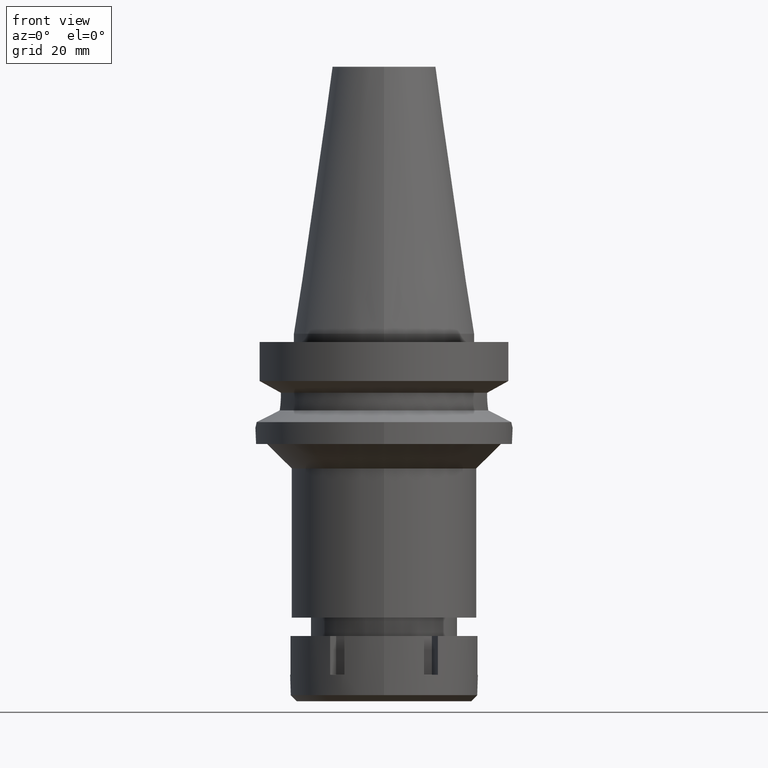
[diagram: clean part render]
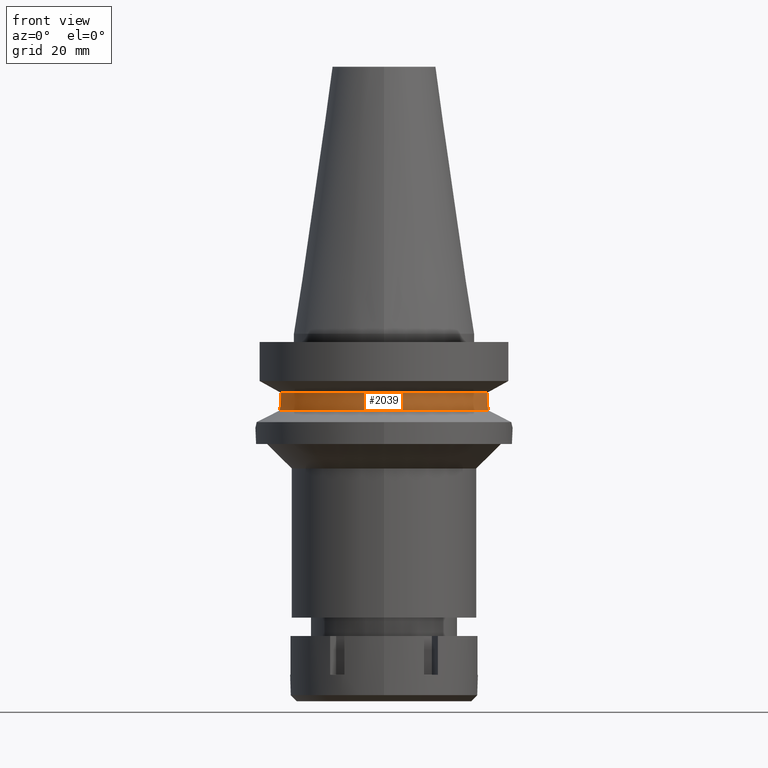
[diagram: same view with one face highlighted and labeled with its STEP entity id]
A machine part, front view. The second image highlights one B-rep face of the part: STEP entity #2039.
In plain terms, the highlighted cylindrical surface (partial cylindrical patch) has radius 26.5 mm, axis along (0, 0, -1).
Its self-contained STEP definition (entity closure, byte-faithful):
#4 = CARTESIAN_POINT ( 'NONE',  ( -25.32419709970849553, -7.806318959900105270, -16.91578803901766292 ) ) ;
#18 = CARTESIAN_POINT ( 'NONE',  ( -25.53175183775000079, -7.097862220092999941, -18.74774300138999905 ) ) ;
#37 = CARTESIAN_POINT ( 'NONE',  ( -25.34388450889784750, -7.742333382928174856, -17.15666984720027344 ) ) ;
#69 = ORIENTED_EDGE ( 'NONE', *, *, #2033, .F. ) ;
#160 = LINE ( 'NONE', #2058, #1057 ) ;
#229 = CYLINDRICAL_SURFACE ( 'NONE', #2200, 26.50000000000000000 ) ;
#251 = CARTESIAN_POINT ( 'NONE',  ( -25.24772266957999989, -8.049999999999981171, -15.58999736273363546 ) ) ;
#274 = CARTESIAN_POINT ( 'NONE',  ( -25.39164951572487183, -7.584807667336966652, -17.65197957159458753 ) ) ;
#398 = CIRCLE ( 'NONE', #452, 26.50000000000000711 ) ;
#452 = AXIS2_PLACEMENT_3D ( 'NONE', #2230, #1123, #1888 ) ;
#462 = EDGE_CURVE ( 'NONE', #1646, #2108, #784, .T. ) ;
#506 = CARTESIAN_POINT ( 'NONE',  ( 25.36814761471071833, -7.663830712965396863, -17.48803584493440155 ) ) ;
#527 = DIRECTION ( 'NONE',  ( -2.939192534022975746E-06, 9.218380696526922230E-06, 0.9999999999531912209 ) ) ;
#572 = CARTESIAN_POINT ( 'NONE',  ( -25.35412323723021544, -7.708830947932238331, -17.27007949472962878 ) ) ;
#593 = ORIENTED_EDGE ( 'NONE', *, *, #2629, .F. ) ;
#717 = CARTESIAN_POINT ( 'NONE',  ( 25.53175183775000079, -7.097862220092999941, -18.74774300138999905 ) ) ;
#734 = ORIENTED_EDGE ( 'NONE', *, *, #1414, .F. ) ;
#752 = CARTESIAN_POINT ( 'NONE',  ( 25.24772266958000344, -8.050000000000000711, -14.94999999999999929 ) ) ;
#784 = CIRCLE ( 'NONE', #1231, 26.49999999999998224 ) ;
#870 = VERTEX_POINT ( 'NONE', #2867 ) ;
#1057 = VECTOR ( 'NONE', #3492, 1000.000000000000000 ) ;
#1068 = CARTESIAN_POINT ( 'NONE',  ( -25.24772266958000344, -8.050000000000000711, -14.94999999999999929 ) ) ;
#1102 = CARTESIAN_POINT ( 'NONE',  ( -25.32844777903620681, -7.792527725354012169, -16.96974754110893002 ) ) ;
#1123 = DIRECTION ( 'NONE',  ( 0.0000000000000000000, 0.0000000000000000000, -1.000000000000000000 ) ) ;
#1189 = EDGE_CURVE ( 'NONE', #1648, #870, #398, .T. ) ;
#1231 = AXIS2_PLACEMENT_3D ( 'NONE', #2509, #1915, #3074 ) ;
#1247 = CARTESIAN_POINT ( 'NONE',  ( 25.24772266958000699, -8.050000000000000711, -15.26991324108734283 ) ) ;
#1292 = CARTESIAN_POINT ( 'NONE',  ( 25.31950905643225980, -7.821515286679934675, -16.85442525727312812 ) ) ;
#1299 = DIRECTION ( 'NONE',  ( 0.0000000000000000000, 0.0000000000000000000, -1.000000000000000000 ) ) ;
#1309 = CARTESIAN_POINT ( 'NONE',  ( 25.27268336911707891, -7.971811480182260823, -16.08115959834935182 ) ) ;
#1347 = CARTESIAN_POINT ( 'NONE',  ( -25.37573308857942322, -7.637710303739487117, -17.49818662950802306 ) ) ;
#1389 = ORIENTED_EDGE ( 'NONE', *, *, #1189, .T. ) ;
#1414 = EDGE_CURVE ( 'NONE', #1646, #2911, #1672, .T. ) ;
#1444 = ORIENTED_EDGE ( 'NONE', *, *, #462, .T. ) ;
#1562 = CARTESIAN_POINT ( 'NONE',  ( 25.28048358772242565, -7.947040743794929085, -16.24400980664070460 ) ) ;
#1646 = VERTEX_POINT ( 'NONE', #2960 ) ;
#1648 = VERTEX_POINT ( 'NONE', #2874 ) ;
#1649 = CARTESIAN_POINT ( 'NONE',  ( -25.27269391207093463, -7.973288729731969227, -16.24537813257547469 ) ) ;
#1672 = B_SPLINE_CURVE_WITH_KNOTS ( 'NONE', 3,
 ( #18, #1887, #3033, #274, #1347, #572, #37, #2444, #1102, #2192, #4, #1649, #251, #1068 ),
 .UNSPECIFIED., .F., .F.,
 ( 4, 2, 2, 1, 1, 2, 2, 4 ),
 ( 0.0000000000000000000, 0.2500000000000041078, 0.3750000000000073830, 0.4375000000000078826, 0.4687500000000093259, 0.4843750000000099365, 0.5000000000000105471, 1.000000000000000000 ),
 .UNSPECIFIED. ) ;
#1756 = VERTEX_POINT ( 'NONE', #3202 ) ;
#1766 = EDGE_CURVE ( 'NONE', #1756, #2108, #2059, .T. ) ;
#1817 = CARTESIAN_POINT ( 'NONE',  ( 25.31648647172268340, -7.831300037042765894, -16.81378020971403231 ) ) ;
#1832 = CARTESIAN_POINT ( 'NONE',  ( 25.25396284446427231, -8.030907492774097989, -15.59360398733918451 ) ) ;
#1850 = CARTESIAN_POINT ( 'NONE',  ( 25.31202572170775866, -7.845729406580135290, -16.75279821057739582 ) ) ;
#1887 = CARTESIAN_POINT ( 'NONE',  ( -25.48482038766596958, -7.266679548433801372, -18.43222872448819771 ) ) ;
#1888 = DIRECTION ( 'NONE',  ( 0.9527442516822307583, -0.3037735849057093818, 0.0000000000000000000 ) ) ;
#1915 = DIRECTION ( 'NONE',  ( 0.0000000000000000000, 0.0000000000000000000, 1.000000000000000000 ) ) ;
#2033 = EDGE_CURVE ( 'NONE', #1648, #1756, #160, .T. ) ;
#2039 = ADVANCED_FACE ( 'NONE', ( #3431 ), #229, .T. ) ;
#2058 = CARTESIAN_POINT ( 'NONE',  ( 25.24772216499999899, -8.050001582554001445, -14.45224490650999805 ) ) ;
#2059 = B_SPLINE_CURVE_WITH_KNOTS ( 'NONE', 3,
 ( #752, #1247, #1832, #1309, #1562, #2659, #2353, #1850, #1817, #1292, #2951, #506, #3168, #717 ),
 .UNSPECIFIED., .F., .F.,
 ( 4, 2, 2, 1, 1, 2, 2, 4 ),
 ( 0.0000000000000000000, 0.2499999999999888978, 0.3749999999999832911, 0.4374999999999816813, 0.4687499999999808487, 0.4843749999999804046, 0.4999999999999800160, 1.000000000000000000 ),
 .UNSPECIFIED. ) ;
#2108 = VERTEX_POINT ( 'NONE', #2362 ) ;
#2192 = CARTESIAN_POINT ( 'NONE',  ( -25.32550670071061916, -7.802071535306239092, -16.93256103013014169 ) ) ;
#2200 = AXIS2_PLACEMENT_3D ( 'NONE', #2887, #1299, #2384 ) ;
#2230 = CARTESIAN_POINT ( 'NONE',  ( 0.0000000000000000000, 1.065333950388000029E-14, -14.45225699861000024 ) ) ;
#2353 = CARTESIAN_POINT ( 'NONE',  ( 25.30212919435223284, -7.877667573970344783, -16.61042047323939741 ) ) ;
#2362 = CARTESIAN_POINT ( 'NONE',  ( 25.53175183775000079, -7.097862220092999941, -18.74774300138999905 ) ) ;
#2384 = DIRECTION ( 'NONE',  ( 0.0000000000000000000, -1.000000000000000000, 0.0000000000000000000 ) ) ;
#2395 = LINE ( 'NONE', #2432, #2470 ) ;
#2432 = CARTESIAN_POINT ( 'NONE',  ( -25.24772266958000344, -8.050000000000000711, -14.94999999999999929 ) ) ;
#2444 = CARTESIAN_POINT ( 'NONE',  ( -25.33293017119236268, -7.777974374871634566, -17.02562462713753177 ) ) ;
#2470 = VECTOR ( 'NONE', #527, 1000.000000000000227 ) ;
#2509 = CARTESIAN_POINT ( 'NONE',  ( 0.0000000000000000000, 0.0000000000000000000, -18.74774300138999905 ) ) ;
#2629 = EDGE_CURVE ( 'NONE', #2911, #870, #2395, .T. ) ;
#2659 = CARTESIAN_POINT ( 'NONE',  ( 25.29452398121202350, -7.902090651792934572, -16.48828405102940664 ) ) ;
#2693 = ORIENTED_EDGE ( 'NONE', *, *, #1766, .F. ) ;
#2733 = EDGE_LOOP ( 'NONE', ( #734, #1444, #2693, #69, #1389, #593 ) ) ;
#2780 = CARTESIAN_POINT ( 'NONE',  ( -25.24772266958000344, -8.050000000000000711, -14.94999999999999929 ) ) ;
#2867 = CARTESIAN_POINT ( 'NONE',  ( -25.24772413243999836, -8.049995411938999368, -14.45229205738999845 ) ) ;
#2874 = CARTESIAN_POINT ( 'NONE',  ( 25.24772266958000344, -8.050000000000000711, -14.45225699861000024 ) ) ;
#2887 = CARTESIAN_POINT ( 'NONE',  ( 0.0000000000000000000, 2.115822274886999895E-14, 72.76999999999999602 ) ) ;
#2911 = VERTEX_POINT ( 'NONE', #2780 ) ;
#2951 = CARTESIAN_POINT ( 'NONE',  ( 25.32118155423751560, -7.816096717212926315, -16.87652453452369627 ) ) ;
#2960 = CARTESIAN_POINT ( 'NONE',  ( -25.53175183775000079, -7.097862220092999941, -18.74774300138999905 ) ) ;
#3033 = CARTESIAN_POINT ( 'NONE',  ( -25.44392837589916567, -7.408239565059886900, -18.11709494172728796 ) ) ;
#3074 = DIRECTION ( 'NONE',  ( -0.9634623335000935818, -0.2678438573619981722, 0.0000000000000000000 ) ) ;
#3168 = CARTESIAN_POINT ( 'NONE',  ( 25.43786330456364553, -7.435589081429987424, -18.11654211998960662 ) ) ;
#3202 = CARTESIAN_POINT ( 'NONE',  ( 25.24772266958000344, -8.050000000000000711, -14.94999999999999929 ) ) ;
#3431 = FACE_OUTER_BOUND ( 'NONE', #2733, .T. ) ;
#3492 = DIRECTION ( 'NONE',  ( 1.013715580283031938E-06, 3.179381947271099936E-06, -0.9999999999944320095 ) ) ;